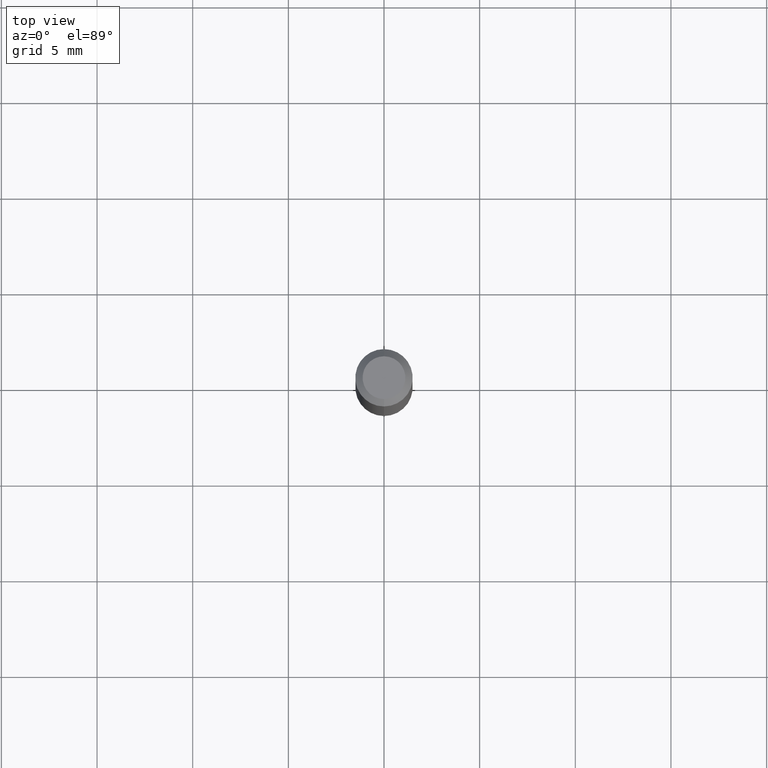
[diagram: clean part render]
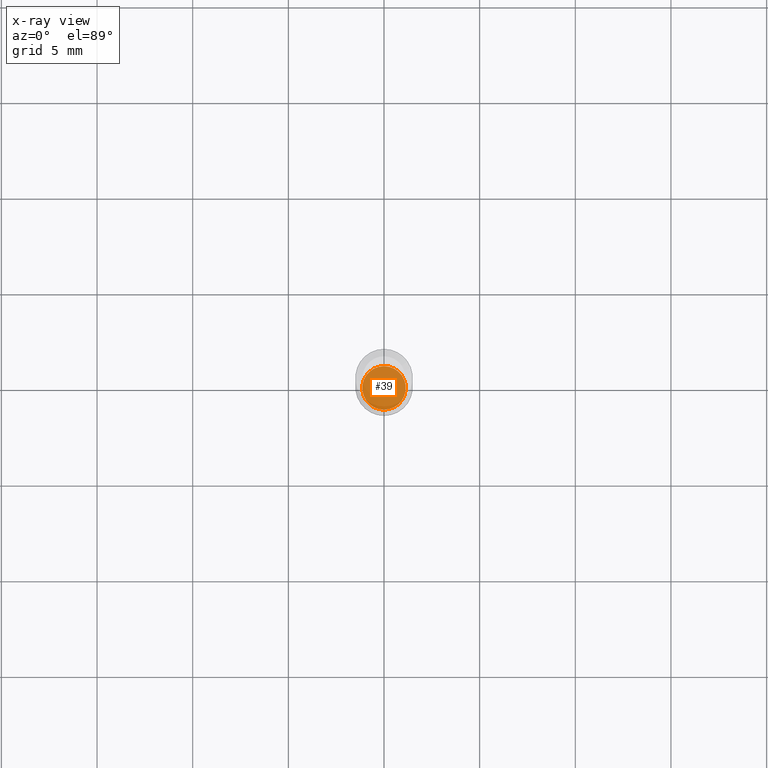
[diagram: x-ray — body ghosted, one internal face saturated and labeled with its STEP entity id]
A machine part, top view, then the same camera in x-ray: the body is ghosted and one INTERNAL B-rep face — a face not visible from any outside direction — is saturated and labeled: STEP entity #39.
In plain terms, the highlighted planar face has unit normal (-0, 0, 1).
Its self-contained STEP definition (entity closure, byte-faithful):
#32 = EDGE_LOOP ( 'NONE', ( #151, #298 ) ) ;
#39 = ADVANCED_FACE ( 'NONE', ( #443 ), #244, .F. ) ;
#58 = EDGE_CURVE ( 'NONE', #109, #295, #480, .T. ) ;
#60 = AXIS2_PLACEMENT_3D ( 'NONE', #178, #64, #405 ) ;
#64 = DIRECTION ( 'NONE',  ( -2.445400630016403111E-29, 3.491578970997118229E-15, 1.000000000000000000 ) ) ;
#93 = CARTESIAN_POINT ( 'NONE',  ( -3.128367279603147534E-16, -0.04480000000000427390, -1.224399999999999711 ) ) ;
#109 = VERTEX_POINT ( 'NONE', #93 ) ;
#118 = CARTESIAN_POINT ( 'NONE',  ( 2.994148531392083596E-29, -4.275089292088871279E-15, -1.224399999999999933 ) ) ;
#151 = ORIENTED_EDGE ( 'NONE', *, *, #58, .F. ) ;
#160 = CIRCLE ( 'NONE', #60, 0.04479999999999999954 ) ;
#167 = DIRECTION ( 'NONE',  ( -2.445400630016403111E-29, 3.491578970997118229E-15, 1.000000000000000000 ) ) ;
#168 = AXIS2_PLACEMENT_3D ( 'NONE', #118, #167, #368 ) ;
#173 = EDGE_CURVE ( 'NONE', #295, #109, #160, .T. ) ;
#178 = CARTESIAN_POINT ( 'NONE',  ( 2.994148531392083596E-29, -4.275089292088871279E-15, -1.224399999999999933 ) ) ;
#244 = PLANE ( 'NONE',  #418 ) ;
#254 = CARTESIAN_POINT ( 'NONE',  ( 3.200995024599552074E-16, 0.04479999999999572519, -1.224400000000000155 ) ) ;
#280 = DIRECTION ( 'NONE',  ( -6.982962677686265922E-15, -1.000000000000000000, 3.491578970997118229E-15 ) ) ;
#295 = VERTEX_POINT ( 'NONE', #254 ) ;
#298 = ORIENTED_EDGE ( 'NONE', *, *, #173, .F. ) ;
#356 = DIRECTION ( 'NONE',  ( -2.445400630016402831E-29, 3.491578970997118229E-15, 1.000000000000000000 ) ) ;
#368 = DIRECTION ( 'NONE',  ( -6.982962677686266711E-15, -1.000000000000000000, 3.048937492928865273E-15 ) ) ;
#396 = CARTESIAN_POINT ( 'NONE',  ( 2.994148531392083596E-29, -4.275089292088871279E-15, -1.224399999999999933 ) ) ;
#405 = DIRECTION ( 'NONE',  ( -6.982962677686266711E-15, -1.000000000000000000, 3.048937492928865273E-15 ) ) ;
#418 = AXIS2_PLACEMENT_3D ( 'NONE', #396, #356, #280 ) ;
#443 = FACE_OUTER_BOUND ( 'NONE', #32, .T. ) ;
#480 = CIRCLE ( 'NONE', #168, 0.04479999999999999954 ) ;